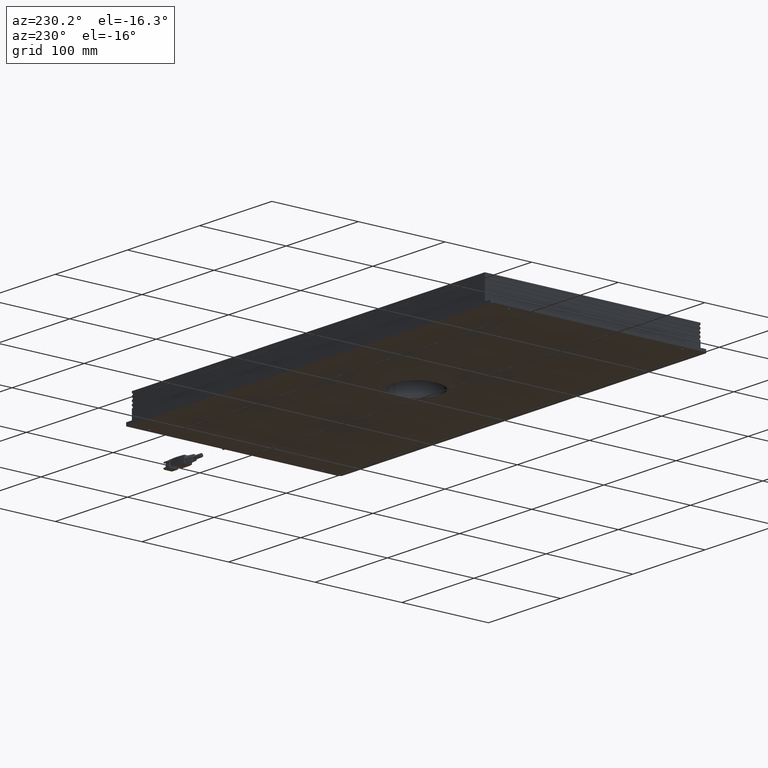
[diagram: clean part render]
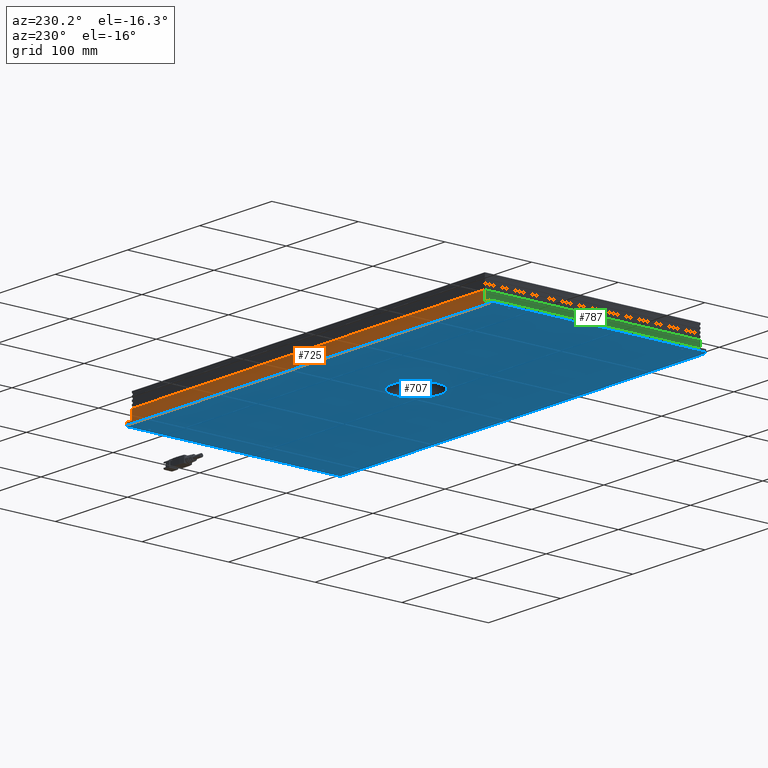
[diagram: same view with three faces highlighted in distinct colors, each labeled with its STEP entity id]
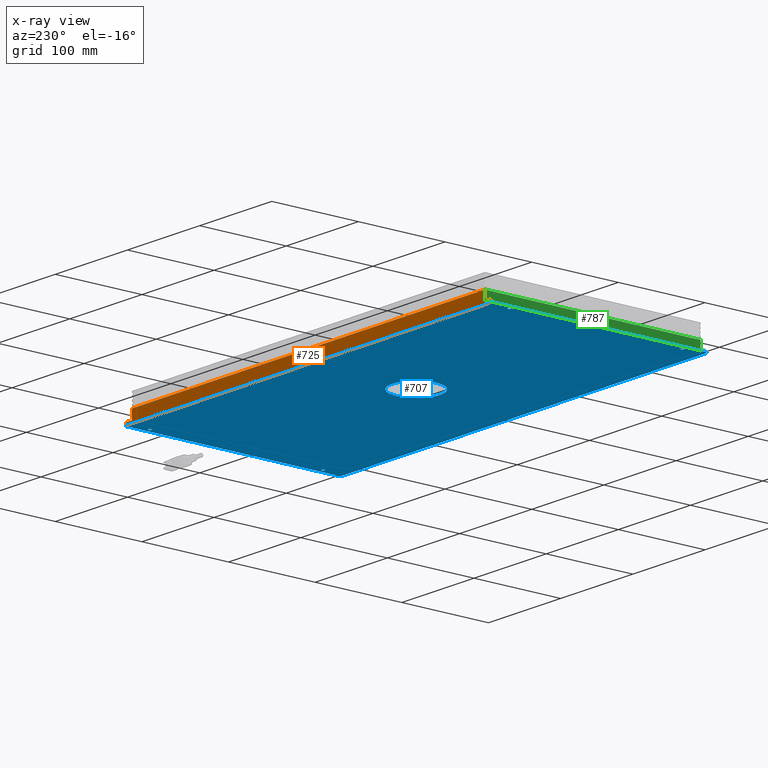
[diagram: x-ray of the same camera — body ghosted, the three highlighted faces saturated]
A machine part, auxiliary view with three faces highlighted in distinct colors.
The next image is the same camera in x-ray (body ghosted, the three faces saturated) — at least one of them is partly hidden behind the body in this view.
Their STEP definitions:

[orange] entity #725 — the highlighted planar face has unit normal (0, 1, 0).
#725=ADVANCED_FACE('0:61',(#2034),#2035,.T.);
#2034=FACE_OUTER_BOUND('',#3821,.T.);
#2035=PLANE('',#3822);
#3821=EDGE_LOOP('',(#6856,#6857,#6858,#6859,#6860,#6861,#6862,#6863));
#3822=AXIS2_PLACEMENT_3D('',#6864,#6865,#6866);
#6856=ORIENTED_EDGE('',*,*,#9372,.T.);
#6857=ORIENTED_EDGE('',*,*,#9320,.F.);
#6858=ORIENTED_EDGE('',*,*,#9380,.T.);
#6859=ORIENTED_EDGE('',*,*,#9330,.T.);
#6860=ORIENTED_EDGE('',*,*,#9381,.F.);
#6861=ORIENTED_EDGE('',*,*,#9382,.T.);
#6862=ORIENTED_EDGE('',*,*,#9383,.F.);
#6863=ORIENTED_EDGE('',*,*,#9384,.T.);
#6864=CARTESIAN_POINT('',(0.2545,0.1245,4.35415592470179E-16));
#6865=DIRECTION('',(0.0,1.0,3.49148336110938E-15));
#6866=DIRECTION('',(0.0,3.49148336110938E-15,-1.0));
#9320=EDGE_CURVE('0:706',#9739,#9741,#9742,.T.);
#9330=EDGE_CURVE('0:397',#9759,#9757,#9760,.T.);
#9372=EDGE_CURVE('0:391',#9835,#9741,#9836,.T.);
#9380=EDGE_CURVE('0:394',#9739,#9759,#9848,.T.);
#9381=EDGE_CURVE('0:355',#9849,#9757,#9850,.T.);
#9382=EDGE_CURVE('0:400',#9849,#9851,#9852,.T.);
#9383=EDGE_CURVE('0:631',#9853,#9851,#9854,.T.);
#9384=EDGE_CURVE('0:403',#9853,#9835,#9855,.T.);
#9739=VERTEX_POINT('',#10281);
#9741=VERTEX_POINT('',#10284);
#9742=LINE('',#10285,#10286);
#9757=VERTEX_POINT('',#10303);
#9759=VERTEX_POINT('',#10306);
#9760=LINE('',#10307,#10308);
#9835=VERTEX_POINT('',#10413);
#9836=LINE('',#10414,#10415);
#9848=LINE('',#10432,#10433);
#9849=VERTEX_POINT('',#10434);
#9850=LINE('',#10435,#10436);
#9851=VERTEX_POINT('',#10437);
#9852=LINE('',#10438,#10439);
#9853=VERTEX_POINT('',#10440);
#9854=LINE('',#10441,#10442);
#9855=LINE('',#10443,#10444);
#10281=CARTESIAN_POINT('',(0.2525,0.1245,0.00300000000000043));
#10284=CARTESIAN_POINT('',(0.2445,0.1245,0.00300000000000043));
#10285=CARTESIAN_POINT('',(0.2525,0.1245,0.00300000000000043));
#10286=VECTOR('',#10964,1.0);
#10303=CARTESIAN_POINT('',(-0.2525,0.1245,4.35415592470179E-16));
#10306=CARTESIAN_POINT('',(0.2525,0.1245,4.35415592470179E-16));
#10307=CARTESIAN_POINT('',(0.2525,0.1245,4.35415592470179E-16));
#10308=VECTOR('',#10980,1.0);
#10413=CARTESIAN_POINT('',(0.2445,0.1245,0.0140000000000004));
#10414=CARTESIAN_POINT('',(0.2445,0.1245,0.0140000000000004));
#10415=VECTOR('',#11023,1.0);
#10432=CARTESIAN_POINT('',(0.2525,0.1245,0.00300000000000043));
#10433=VECTOR('',#11029,1.0);
#10434=CARTESIAN_POINT('',(-0.2525,0.1245,0.00300000000000043));
#10435=CARTESIAN_POINT('',(-0.2525,0.1245,0.00300000000000043));
#10436=VECTOR('',#11030,1.0);
#10437=CARTESIAN_POINT('',(-0.2445,0.1245,0.00300000000000043));
#10438=CARTESIAN_POINT('',(-0.2525,0.1245,0.00300000000000043));
#10439=VECTOR('',#11031,1.0);
#10440=CARTESIAN_POINT('',(-0.2445,0.1245,0.0140000000000004));
#10441=CARTESIAN_POINT('',(-0.2445,0.1245,0.0140000000000004));
#10442=VECTOR('',#11032,1.0);
#10443=CARTESIAN_POINT('',(-0.2445,0.1245,0.0140000000000004));
#10444=VECTOR('',#11033,1.0);
#10964=DIRECTION('',(-1.0,-0.0,0.0));
#10980=DIRECTION('',(-1.0,-0.0,0.0));
#11023=DIRECTION('',(0.0,3.49148336110938E-15,-1.0));
#11029=DIRECTION('',(0.0,3.49148336110938E-15,-1.0));
#11030=DIRECTION('',(0.0,3.49148336110938E-15,-1.0));
#11031=DIRECTION('',(1.0,0.0,0.0));
#11032=DIRECTION('',(0.0,3.49148336110938E-15,-1.0));
#11033=DIRECTION('',(1.0,0.0,0.0));

[blue] entity #707 — the highlighted planar face has unit normal (0, -0, 1).
#707=ADVANCED_FACE('0:37',(#2002,#2003,#2004,#2005,#2006,#2007),#2008,.F.);
#2002=FACE_OUTER_BOUND('',#3789,.T.);
#2003=FACE_BOUND('',#3790,.T.);
#2004=FACE_BOUND('',#3791,.T.);
#2005=FACE_BOUND('',#3792,.T.);
#2006=FACE_BOUND('',#3793,.T.);
#2007=FACE_BOUND('',#3794,.T.);
#2008=PLANE('',#3795);
#3789=EDGE_LOOP('',(#6773,#6774,#6775,#6776,#6777,#6778,#6779,#6780));
#3790=EDGE_LOOP('',(#6781));
#3791=EDGE_LOOP('',(#6782));
#3792=EDGE_LOOP('',(#6783));
#3793=EDGE_LOOP('',(#6784));
#3794=EDGE_LOOP('',(#6785));
#3795=AXIS2_PLACEMENT_3D('',#6786,#6787,#6788);
#6773=ORIENTED_EDGE('',*,*,#9328,.F.);
#6774=ORIENTED_EDGE('',*,*,#9329,.T.);
#6775=ORIENTED_EDGE('',*,*,#9330,.F.);
#6776=ORIENTED_EDGE('',*,*,#9331,.T.);
#6777=ORIENTED_EDGE('',*,*,#9332,.F.);
#6778=ORIENTED_EDGE('',*,*,#9333,.T.);
#6779=ORIENTED_EDGE('',*,*,#9334,.F.);
#6780=ORIENTED_EDGE('',*,*,#9335,.T.);
#6781=ORIENTED_EDGE('',*,*,#9336,.T.);
#6782=ORIENTED_EDGE('',*,*,#9337,.T.);
#6783=ORIENTED_EDGE('',*,*,#9338,.F.);
#6784=ORIENTED_EDGE('',*,*,#9339,.F.);
#6785=ORIENTED_EDGE('',*,*,#9325,.T.);
#6786=CARTESIAN_POINT('',(0.0,5.23722504166407E-17,0.0));
#6787=DIRECTION('',(0.0,-3.49148336110938E-15,1.0));
#6788=DIRECTION('',(1.0,0.0,0.0));
#9325=EDGE_CURVE('0:325',#9749,#9749,#9750,.T.);
#9328=EDGE_CURVE('0:352',#9754,#9755,#9756,.T.);
#9329=EDGE_CURVE('0:328',#9754,#9757,#9758,.T.);
#9330=EDGE_CURVE('0:397',#9759,#9757,#9760,.T.);
#9331=EDGE_CURVE('0:331',#9759,#9761,#9762,.T.);
#9332=EDGE_CURVE('0:895',#9763,#9761,#9764,.T.);
#9333=EDGE_CURVE('0:334',#9763,#9765,#9766,.T.);
#9334=EDGE_CURVE('0:655',#9767,#9765,#9768,.T.);
#9335=EDGE_CURVE('0:337',#9767,#9755,#9769,.T.);
#9336=EDGE_CURVE('0:340',#9770,#9770,#9771,.T.);
#9337=EDGE_CURVE('0:343',#9772,#9772,#9773,.T.);
#9338=EDGE_CURVE('0:901',#9774,#9774,#9775,.T.);
#9339=EDGE_CURVE('0:904',#9776,#9776,#9777,.T.);
#9749=VERTEX_POINT('',#10294);
#9750=CIRCLE('',#10295,0.0275);
#9754=VERTEX_POINT('',#10299);
#9755=VERTEX_POINT('',#10300);
#9756=LINE('',#10301,#10302);
#9757=VERTEX_POINT('',#10303);
#9758=LINE('',#10304,#10305);
#9759=VERTEX_POINT('',#10306);
#9760=LINE('',#10307,#10308);
#9761=VERTEX_POINT('',#10309);
#9762=LINE('',#10310,#10311);
#9763=VERTEX_POINT('',#10312);
#9764=LINE('',#10313,#10314);
#9765=VERTEX_POINT('',#10315);
#9766=LINE('',#10316,#10317);
#9767=VERTEX_POINT('',#10318);
#9768=LINE('',#10319,#10320);
#9769=LINE('',#10321,#10322);
#9770=VERTEX_POINT('',#10323);
#9771=CIRCLE('',#10324,0.00175);
#9772=VERTEX_POINT('',#10325);
#9773=CIRCLE('',#10326,0.00175);
#9774=VERTEX_POINT('',#10327);
#9775=CIRCLE('',#10328,0.00175);
#9776=VERTEX_POINT('',#10329);
#9777=CIRCLE('',#10330,0.00175);
#10294=CARTESIAN_POINT('',(0.0275,5.06883610678131E-17,-5.87927164338092E-33));
#10295=AXIS2_PLACEMENT_3D('',#10972,#10973,#10974);
#10299=CARTESIAN_POINT('',(-0.2545,0.1225,4.28476698566271E-16));
#10300=CARTESIAN_POINT('',(-0.2545,-0.1225,-4.28476698566271E-16));
#10301=CARTESIAN_POINT('',(-0.2545,0.1225,4.28476698566271E-16));
#10302=VECTOR('',#10978,1.0);
#10303=CARTESIAN_POINT('',(-0.2525,0.1245,4.35415592470179E-16));
#10304=CARTESIAN_POINT('',(-0.2545,0.1225,4.28476698566271E-16));
#10305=VECTOR('',#10979,1.0);
#10306=CARTESIAN_POINT('',(0.2525,0.1245,4.35415592470179E-16));
#10307=CARTESIAN_POINT('',(0.2525,0.1245,4.35415592470179E-16));
#10308=VECTOR('',#10980,1.0);
#10309=CARTESIAN_POINT('',(0.2545,0.1225,4.28476698566271E-16));
#10310=CARTESIAN_POINT('',(0.2525,0.1245,4.35415592470179E-16));
#10311=VECTOR('',#10981,1.0);
#10312=CARTESIAN_POINT('',(0.2545,-0.1225,-4.28476698566271E-16));
#10313=CARTESIAN_POINT('',(0.2545,-0.1225,-4.28476698566271E-16));
#10314=VECTOR('',#10982,1.0);
#10315=CARTESIAN_POINT('',(0.2525,-0.1245,-4.35415592470179E-16));
#10316=CARTESIAN_POINT('',(0.2545,-0.1225,-4.28476698566271E-16));
#10317=VECTOR('',#10983,1.0);
#10318=CARTESIAN_POINT('',(-0.2525,-0.1245,-4.35415592470179E-16));
#10319=CARTESIAN_POINT('',(-0.2525,-0.1245,-4.35415592470179E-16));
#10320=VECTOR('',#10984,1.0);
#10321=CARTESIAN_POINT('',(-0.2525,-0.1245,-4.35415592470179E-16));
#10322=VECTOR('',#10985,1.0);
#10323=CARTESIAN_POINT('',(-0.25075,0.1,3.48679418671338E-16));
#10324=AXIS2_PLACEMENT_3D('',#10986,#10987,#10988);
#10325=CARTESIAN_POINT('',(-0.25075,-0.1,-3.48679418671338E-16));
#10326=AXIS2_PLACEMENT_3D('',#10989,#10990,#10991);
#10327=CARTESIAN_POINT('',(0.25075,0.1,3.48679418671338E-16));
#10328=AXIS2_PLACEMENT_3D('',#10992,#10993,#10994);
#10329=CARTESIAN_POINT('',(0.25075,-0.1,-3.48679418671338E-16));
#10330=AXIS2_PLACEMENT_3D('',#10995,#10996,#10997);
#10972=CARTESIAN_POINT('',(0.0,5.23722504166407E-17,0.0));
#10973=DIRECTION('',(0.0,-3.49148336110938E-15,1.0));
#10974=DIRECTION('',(1.0,-6.12323399573677E-17,-2.13791696122942E-31));
#10978=DIRECTION('',(0.0,-1.0,-3.49148336110938E-15));
#10979=DIRECTION('',(0.707106781186548,0.707106781186548,2.46885156104044E-15));
#10980=DIRECTION('',(-1.0,-0.0,0.0));
#10981=DIRECTION('',(0.707106781186548,-0.707106781186548,-2.46885156104044E-15));
#10982=DIRECTION('',(0.0,1.0,3.49148336110938E-15));
#10983=DIRECTION('',(-0.707106781186498,-0.707106781186598,-2.46885156104062E-15));
#10984=DIRECTION('',(1.0,0.0,0.0));
#10985=DIRECTION('',(-0.707106781186548,0.707106781186548,2.46885156104044E-15));
#10986=CARTESIAN_POINT('',(-0.249,0.1,3.48679418671338E-16));
#10987=DIRECTION('',(0.0,-3.49148336110938E-15,1.0));
#10988=DIRECTION('',(-1.0,0.0,0.0));
#10989=CARTESIAN_POINT('',(-0.249,-0.1,-3.48679418671338E-16));
#10990=DIRECTION('',(0.0,-3.49148336110938E-15,1.0));
#10991=DIRECTION('',(-1.0,0.0,0.0));
#10992=CARTESIAN_POINT('',(0.249,0.1,3.48679418671338E-16));
#10993=DIRECTION('',(0.0,3.49148336110938E-15,-1.0));
#10994=DIRECTION('',(1.0,0.0,0.0));
#10995=CARTESIAN_POINT('',(0.249,-0.1,-3.48679418671338E-16));
#10996=DIRECTION('',(0.0,3.49148336110938E-15,-1.0));
#10997=DIRECTION('',(1.0,0.0,0.0));

[green] entity #787 — the highlighted planar face has unit normal (1, 0, 0).
#787=ADVANCED_FACE('0:154',(#2137),#2138,.F.);
#2137=FACE_OUTER_BOUND('',#3924,.T.);
#2138=PLANE('',#3925);
#3924=EDGE_LOOP('',(#7130,#7131,#7132,#7133));
#3925=AXIS2_PLACEMENT_3D('',#7134,#7135,#7136);
#7130=ORIENTED_EDGE('',*,*,#9383,.T.);
#7131=ORIENTED_EDGE('',*,*,#9480,.F.);
#7132=ORIENTED_EDGE('',*,*,#9414,.F.);
#7133=ORIENTED_EDGE('',*,*,#9420,.T.);
#7134=CARTESIAN_POINT('',(-0.2445,-0.1245,0.00299999999999956));
#7135=DIRECTION('',(1.0,0.0,0.0));
#7136=DIRECTION('',(0.0,-3.49148336110938E-15,1.0));
#9383=EDGE_CURVE('0:631',#9853,#9851,#9854,.T.);
#9414=EDGE_CURVE('0:649',#9899,#9900,#9901,.T.);
#9420=EDGE_CURVE('0:634',#9899,#9853,#9908,.T.);
#9480=EDGE_CURVE('0:910',#9900,#9851,#9988,.T.);
#9851=VERTEX_POINT('',#10437);
#9853=VERTEX_POINT('',#10440);
#9854=LINE('',#10441,#10442);
#9899=VERTEX_POINT('',#10509);
#9900=VERTEX_POINT('',#10510);
#9901=LINE('',#10511,#10512);
#9908=LINE('',#10523,#10524);
#9988=LINE('',#10643,#10644);
#10437=CARTESIAN_POINT('',(-0.2445,0.1245,0.00300000000000043));
#10440=CARTESIAN_POINT('',(-0.2445,0.1245,0.0140000000000004));
#10441=CARTESIAN_POINT('',(-0.2445,0.1245,0.0140000000000004));
#10442=VECTOR('',#11032,1.0);
#10509=CARTESIAN_POINT('',(-0.2445,-0.1245,0.0139999999999996));
#10510=CARTESIAN_POINT('',(-0.2445,-0.1245,0.00299999999999956));
#10511=CARTESIAN_POINT('',(-0.2445,-0.1245,0.0139999999999996));
#10512=VECTOR('',#11055,1.0);
#10523=CARTESIAN_POINT('',(-0.2445,-0.1245,0.0139999999999996));
#10524=VECTOR('',#11060,1.0);
#10643=CARTESIAN_POINT('',(-0.2445,-0.1245,0.00299999999999956));
#10644=VECTOR('',#11103,1.0);
#11032=DIRECTION('',(0.0,3.49148336110938E-15,-1.0));
#11055=DIRECTION('',(0.0,3.49148336110938E-15,-1.0));
#11060=DIRECTION('',(0.0,1.0,3.49148336110938E-15));
#11103=DIRECTION('',(0.0,1.0,3.49148336110938E-15));